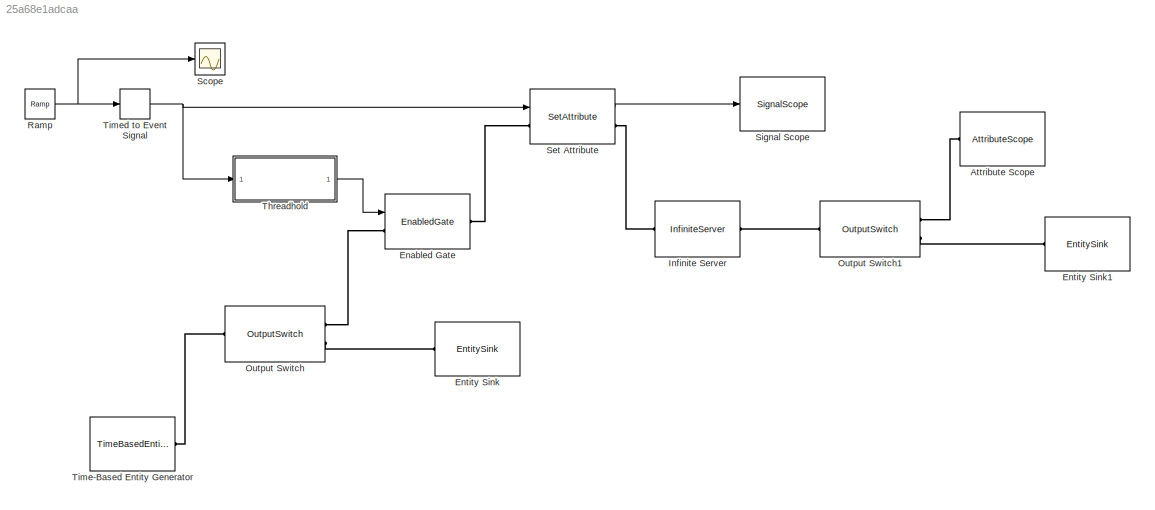
MODEL slx_25a68e1adcaa
KIND model
BLOCK [AttributeScope] Attribute Scope
  AttributeNameY = Value
  CopyFcn = des.scope.CallbackSupport('seCopyFcn',gcbh)
  DeleteFcn = des.scope.CallbackSupport('seDeleteFcn',gcbh)
  LoadFcn = des.scope.CallbackSupport('seLoadFcn',gcbh)
  NameChangeFcn = des.scope.CallbackSupport('seNameChangeFcn',gcbh)
  OpenFcn = des.scope.CallbackSupport('seOpenFcn',gcbh)
  Ports = [0, 0, 0, 0, 0, 1, 1]
  PreSaveFcn = des.scope.CallbackSupport('sePreSaveFcn',gcbh)
  StartFcn = des.scope.CallbackSupport('seStartFcn',gcbh)
  StopFcn = des.scope.CallbackSupport('seStopFcn',gcbh)
BLOCK [EnabledGate] Enabled Gate
  InputPortMap = u0
  Ports = [1, 0, 0, 0, 0, 1, 1]
BLOCK [EntitySink] Entity Sink
  Ports = [0, 0, 0, 0, 0, 1]
BLOCK [EntitySink] Entity Sink1
  Ports = [0, 0, 0, 0, 0, 1]
BLOCK [InfiniteServer] Infinite Server
  Ports = [0, 0, 0, 0, 0, 1, 1]
  ServiceTime = 0.1
BLOCK [OutputSwitch] Output Switch
  NumberOutputPorts = 2
  Ports = [0, 0, 0, 0, 0, 1, 2]
BLOCK [OutputSwitch] Output Switch1
  NumberOutputPorts = 2
  Ports = [0, 0, 0, 0, 0, 1, 2]
BLOCK [Reference] Ramp  REF=simulink/Sources/Ramp
  Ports = [0, 1]
  SourceBlock = simulink/Sources/Ramp
  SourceType = Ramp
  VectorParams1D = on
  X0 = 0
  slope = 10
  start = 0
BLOCK [Scope] Scope
  DataFormat = StructureWithTime
  Floating = off
  NumInputPorts = 1
  Ports = [1]
  SampleTime = 0
  ShowLegends = off
BLOCK [SetAttribute] Set Attribute
  AttributeFrom = Signal port
  AttributeName = Value
  EvaluatedAttributeValue = { []}
  InputPortMap = u0
  OutputPortMap = o0
  Ports = [1, 1, 0, 0, 0, 1, 1]
  StatNumberDeparted = on
BLOCK [SignalScope] Signal Scope
  CopyFcn = des.scope.CallbackSupport('seCopyFcn',gcbh)
  DeleteFcn = des.scope.CallbackSupport('seDeleteFcn',gcbh)
  InputPortMap = u0
  LoadFcn = des.scope.CallbackSupport('seLoadFcn',gcbh)
  NameChangeFcn = des.scope.CallbackSupport('seNameChangeFcn',gcbh)
  OpenFcn = des.scope.CallbackSupport('seOpenFcn',gcbh)
  Ports = [1]
  PreSaveFcn = des.scope.CallbackSupport('sePreSaveFcn',gcbh)
  StartFcn = des.scope.CallbackSupport('seStartFcn',gcbh)
  StopFcn = des.scope.CallbackSupport('seStopFcn',gcbh)
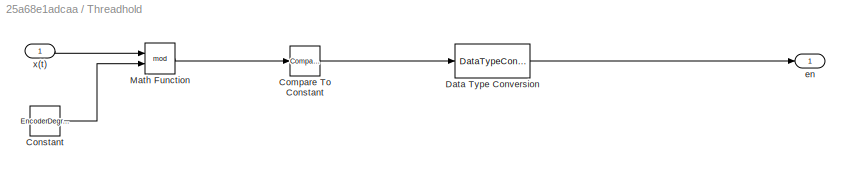
BLOCK [SubSystem] Threadhold
  Ports = [1, 1]
  RequestExecContextInheritance = off
BLOCK [Reference] Threadhold/Compare To Constant  REF=simulink/Logic and Bit
Operations/Compare
To Constant
  OutDataTypeStr = boolean
  Ports = [1, 1]
  SourceBlock = simulink/Logic and Bit\nOperations/Compare\nTo Constant
  SourceType = Compare To Constant
  ZeroCross = on
  const = 0
  relop = ==
BLOCK [Constant] Threadhold/Constant
  Value = EncoderDegree
BLOCK [DataTypeConversion] Threadhold/Data Type Conversion
  RndMeth = Floor
  SaturateOnIntegerOverflow = off
BLOCK [Math] Threadhold/Math Function
  Operator = mod
  Ports = [2, 1]
BLOCK [Outport] Threadhold/en
  IconDisplay = Port number
BLOCK [Inport] Threadhold/x(t)
  IconDisplay = Port number
BLOCK [TimeBasedEntityGenerator] Time-Based Entity Generator
  Period = Ereignisgenerator_Sampletime
  Ports = [0, 0, 0, 0, 0, 0, 1]
BLOCK [TimedToEventSignal] Timed to Event Signal
  InputPortMap = u0
  OutputPortMap = o0
  Ports = [1, 1]
NET Ramp:1 -> Scope:1, Timed to Event Signal:1
LINE Set Attribute:1 -> Signal Scope:1
LINE Threadhold/Compare To Constant:1 -> Threadhold/Data Type Conversion:1
LINE Threadhold/Constant:1 -> Threadhold/Math Function:2
LINE Threadhold/Data Type Conversion:1 -> Threadhold/en:1
LINE Threadhold/Math Function:1 -> Threadhold/Compare To Constant:1
LINE Threadhold/x(t):1 -> Threadhold/Math Function:1
LINE Threadhold:1 -> Enabled Gate:1
NET Timed to Event Signal:1 -> Set Attribute:1, Threadhold:1
PLINE Attribute Scope:LConn1 -- Output Switch1:RConn1
PLINE Enabled Gate:LConn1 -- Output Switch:RConn1
PLINE Enabled Gate:RConn1 -- Set Attribute:LConn1
PLINE Entity Sink1:LConn1 -- Output Switch1:RConn2
PLINE Entity Sink:LConn1 -- Output Switch:RConn2
PLINE Infinite Server:LConn1 -- Set Attribute:RConn1
PLINE Infinite Server:RConn1 -- Output Switch1:LConn1
PLINE Output Switch:LConn1 -- Time-Based Entity Generator:RConn1
note: NET lines group one-source signal fan-out (src -> all destinations, sorted); 1:1 wires keep LINE
